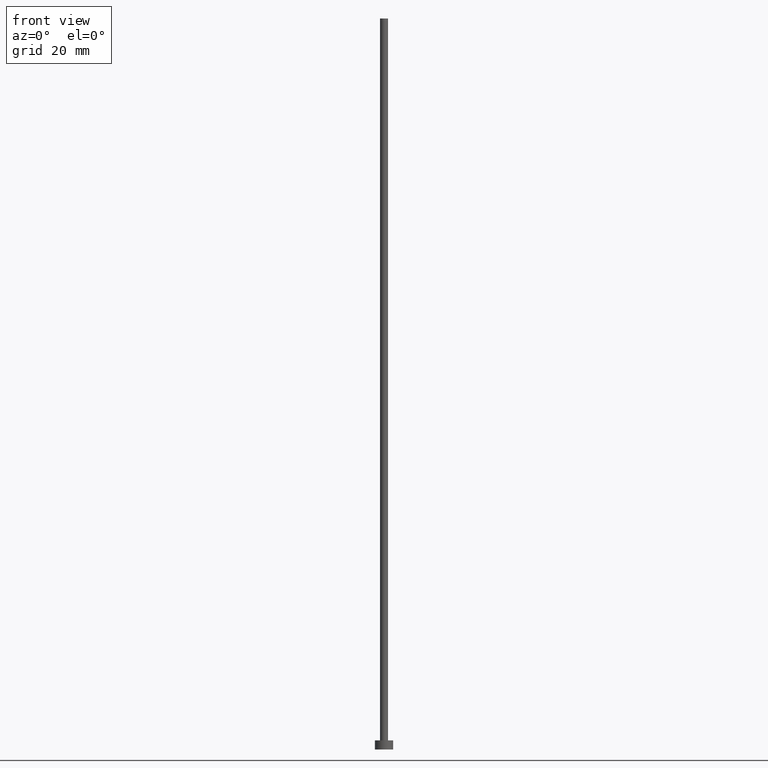
[diagram: clean part render]
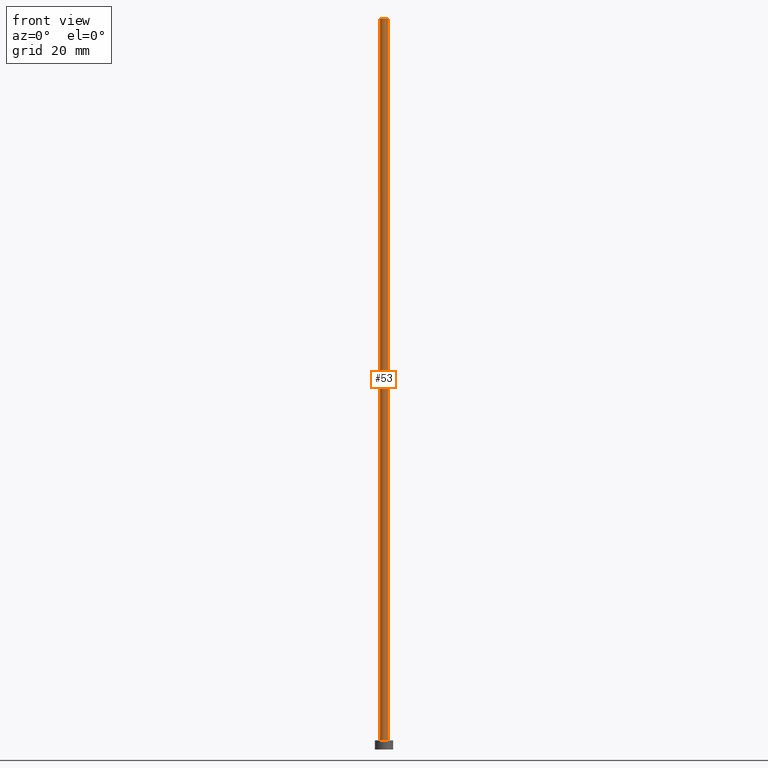
[diagram: same view with one face highlighted and labeled with its STEP entity id]
A machine part, front view. The second image highlights one B-rep face of the part: STEP entity #53.
In plain terms, the highlighted cylindrical surface (edge-blend (fillet) strip) has radius 0.65 mm, axis along (-0, -0, -1).
Its self-contained STEP definition (entity closure, byte-faithful):
#1 = DIRECTION ( 'NONE',  ( -1.000000000000000000, 0.000000000000000000, 0.000000000000000000 ) ) ;
#19 = CARTESIAN_POINT ( 'NONE',  ( 0.000000000000000000, 0.000000000000000000, 120.5000000000000000 ) ) ;
#29 = EDGE_CURVE ( 'NONE', #161, #163, #158, .T. ) ;
#36 = DIRECTION ( 'NONE',  ( 0.000000000000000000, 0.000000000000000000, 1.000000000000000000 ) ) ;
#38 = VERTEX_POINT ( 'NONE', #197 ) ;
#51 = DIRECTION ( 'NONE',  ( -0.000000000000000000, -0.000000000000000000, -1.000000000000000000 ) ) ;
#53 = ADVANCED_FACE ( 'NONE', ( #219 ), #202, .T. ) ;
#54 = EDGE_CURVE ( 'NONE', #118, #161, #72, .T. ) ;
#59 = CARTESIAN_POINT ( 'NONE',  ( 0.000000000000000000, 0.000000000000000000, 1.500000000000000000 ) ) ;
#66 = DIRECTION ( 'NONE',  ( 1.000000000000000000, 0.000000000000000000, 0.000000000000000000 ) ) ;
#72 = LINE ( 'NONE', #190, #99 ) ;
#93 = LINE ( 'NONE', #226, #232 ) ;
#99 = VECTOR ( 'NONE', #245, 1000.000000000000000 ) ;
#105 = ORIENTED_EDGE ( 'NONE', *, *, #54, .T. ) ;
#112 = EDGE_CURVE ( 'NONE', #118, #38, #114, .T. ) ;
#114 = CIRCLE ( 'NONE', #147, 0.6500000000000000222 ) ;
#117 = AXIS2_PLACEMENT_3D ( 'NONE', #19, #51, #1 ) ;
#118 = VERTEX_POINT ( 'NONE', #187 ) ;
#121 = DIRECTION ( 'NONE',  ( 1.000000000000000000, 0.000000000000000000, 0.000000000000000000 ) ) ;
#122 = ORIENTED_EDGE ( 'NONE', *, *, #112, .F. ) ;
#125 = CARTESIAN_POINT ( 'NONE',  ( 0.6500000000000000222, 7.960204194457795477E-17, 1.500000000000000000 ) ) ;
#130 = CARTESIAN_POINT ( 'NONE',  ( 0.000000000000000000, 0.000000000000000000, 120.5000000000000000 ) ) ;
#142 = ORIENTED_EDGE ( 'NONE', *, *, #29, .T. ) ;
#147 = AXIS2_PLACEMENT_3D ( 'NONE', #130, #240, #66 ) ;
#158 = CIRCLE ( 'NONE', #164, 0.6500000000000000222 ) ;
#161 = VERTEX_POINT ( 'NONE', #224 ) ;
#163 = VERTEX_POINT ( 'NONE', #125 ) ;
#164 = AXIS2_PLACEMENT_3D ( 'NONE', #59, #36, #121 ) ;
#166 = ORIENTED_EDGE ( 'NONE', *, *, #196, .F. ) ;
#187 = CARTESIAN_POINT ( 'NONE',  ( -0.6500000000000000222, 0.000000000000000000, 120.5000000000000000 ) ) ;
#190 = CARTESIAN_POINT ( 'NONE',  ( -0.6500000000000000222, 0.000000000000000000, 120.5000000000000000 ) ) ;
#196 = EDGE_CURVE ( 'NONE', #38, #163, #93, .T. ) ;
#197 = CARTESIAN_POINT ( 'NONE',  ( 0.6500000000000000222, 7.960204194457795477E-17, 120.5000000000000000 ) ) ;
#202 = CYLINDRICAL_SURFACE ( 'NONE', #117, 0.6500000000000000222 ) ;
#218 = EDGE_LOOP ( 'NONE', ( #166, #122, #105, #142 ) ) ;
#219 = FACE_OUTER_BOUND ( 'NONE', #218, .T. ) ;
#224 = CARTESIAN_POINT ( 'NONE',  ( -0.6500000000000000222, 0.000000000000000000, 1.500000000000000000 ) ) ;
#226 = CARTESIAN_POINT ( 'NONE',  ( 0.6500000000000000222, 7.960204194457795477E-17, 120.5000000000000000 ) ) ;
#232 = VECTOR ( 'NONE', #244, 1000.000000000000000 ) ;
#240 = DIRECTION ( 'NONE',  ( 0.000000000000000000, 0.000000000000000000, 1.000000000000000000 ) ) ;
#244 = DIRECTION ( 'NONE',  ( -0.000000000000000000, -0.000000000000000000, -1.000000000000000000 ) ) ;
#245 = DIRECTION ( 'NONE',  ( -0.000000000000000000, -0.000000000000000000, -1.000000000000000000 ) ) ;